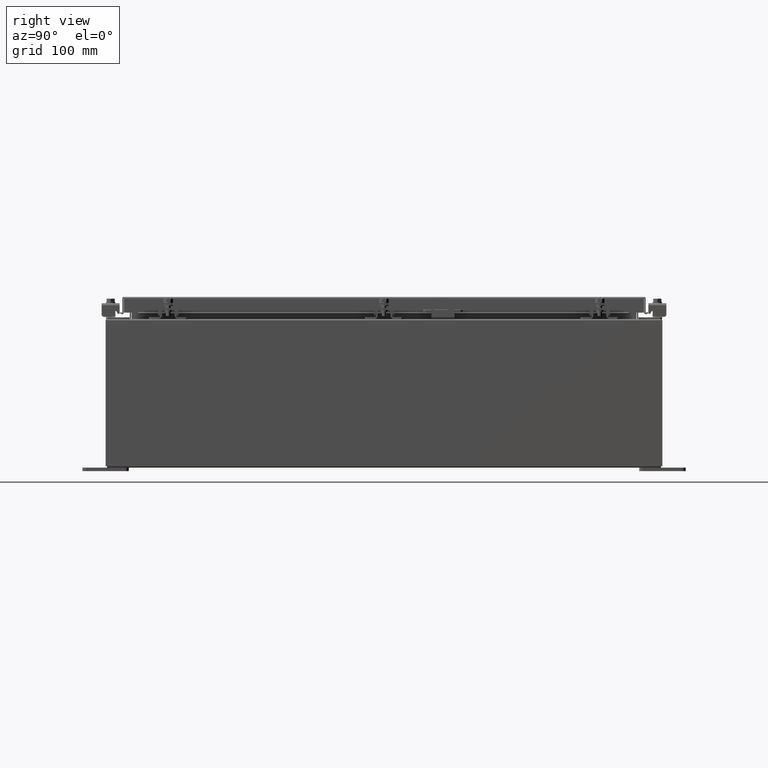
[diagram: clean part render]
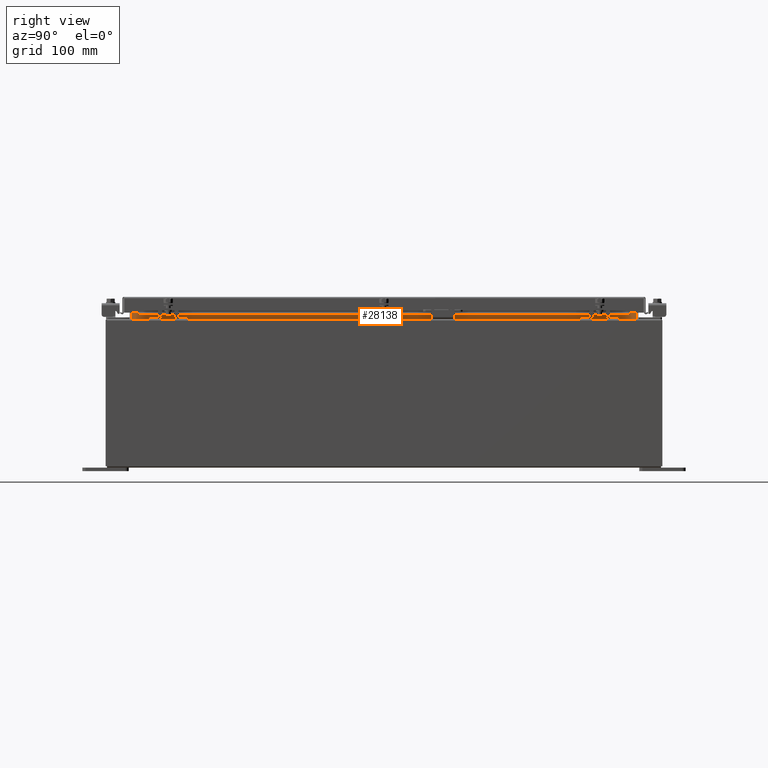
[diagram: same view with one face highlighted and labeled with its STEP entity id]
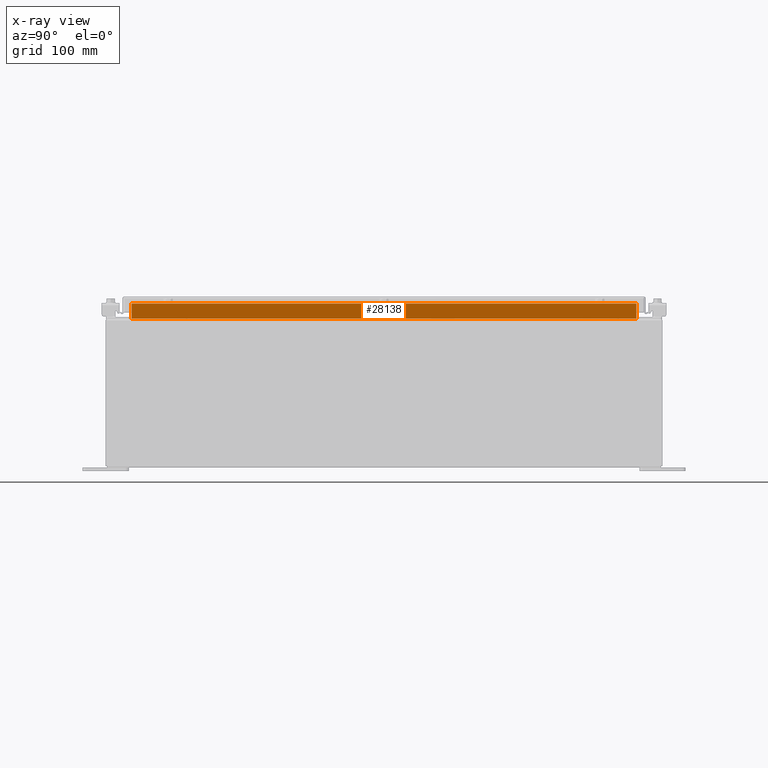
[diagram: x-ray of the same camera — body ghosted, the highlighted face saturated]
A machine part, right view. The second image highlights one B-rep face of the part: STEP entity #28138.
The next image is the same camera in x-ray: the body ghosted, the highlighted face saturated — about 0% of this face is hidden behind the body in this view.
In plain terms, the highlighted planar face has unit normal (1, -0, -0).
Its self-contained STEP definition (entity closure, byte-faithful):
#1247 = EDGE_CURVE ( 'NONE', #17593, #11054, #4870, .T. ) ;
#2328 = CARTESIAN_POINT ( 'NONE',  ( 8.699700000000028400, 13.59375000000000900, 7.938300000000009700 ) ) ;
#3730 = FACE_OUTER_BOUND ( 'NONE', #10174, .T. ) ;
#4870 = LINE ( 'NONE', #36139, #19258 ) ;
#5499 = CARTESIAN_POINT ( 'NONE',  ( 8.699700000000030200, -13.59374999999999800, 8.762900000000009000 ) ) ;
#6831 = CARTESIAN_POINT ( 'NONE',  ( 8.699700000000032000, -13.59374999999999800, 8.762900000000009000 ) ) ;
#7466 = AXIS2_PLACEMENT_3D ( 'NONE', #22059, #21728, #21694 ) ;
#8320 = LINE ( 'NONE', #36901, #15012 ) ;
#10174 = EDGE_LOOP ( 'NONE', ( #32705, #19689, #15746, #34755 ) ) ;
#11054 = VERTEX_POINT ( 'NONE', #6831 ) ;
#11806 = VECTOR ( 'NONE', #35458, 39.37007874015748100 ) ;
#12566 = EDGE_CURVE ( 'NONE', #14529, #17593, #17479, .T. ) ;
#14529 = VERTEX_POINT ( 'NONE', #2328 ) ;
#15012 = VECTOR ( 'NONE', #22332, 39.37007874015748100 ) ;
#15746 = ORIENTED_EDGE ( 'NONE', *, *, #1247, .F. ) ;
#16569 = VECTOR ( 'NONE', #27283, 39.37007874015748100 ) ;
#17479 = LINE ( 'NONE', #27399, #16569 ) ;
#17593 = VERTEX_POINT ( 'NONE', #33159 ) ;
#19258 = VECTOR ( 'NONE', #37233, 39.37007874015748100 ) ;
#19689 = ORIENTED_EDGE ( 'NONE', *, *, #29795, .F. ) ;
#21694 = DIRECTION ( 'NONE',  ( -3.542869979895294000E-015, 0.0000000000000000000, -1.000000000000000000 ) ) ;
#21728 = DIRECTION ( 'NONE',  ( 1.000000000000000000, -1.423975319009148500E-031, -3.542869979895294000E-015 ) ) ;
#22059 = CARTESIAN_POINT ( 'NONE',  ( 8.699700000000000000, -1.238815808278388900E-030, -3.082190596409509000E-014 ) ) ;
#22332 = DIRECTION ( 'NONE',  ( -3.542869979895294000E-015, -0.0000000000000000000, -1.000000000000000000 ) ) ;
#22337 = PLANE ( 'NONE',  #7466 ) ;
#22809 = VERTEX_POINT ( 'NONE', #29195 ) ;
#27283 = DIRECTION ( 'NONE',  ( 4.019270611368110000E-017, -1.000000000000000000, 1.205781183410432900E-016 ) ) ;
#27399 = CARTESIAN_POINT ( 'NONE',  ( 8.699700000000028400, 13.59375000000000700, 7.938300000000008800 ) ) ;
#28138 = ADVANCED_FACE ( 'NONE', ( #3730 ), #22337, .T. ) ;
#29195 = CARTESIAN_POINT ( 'NONE',  ( 8.699700000000030200, 13.59375000000000700, 8.762900000000009000 ) ) ;
#29795 = EDGE_CURVE ( 'NONE', #11054, #22809, #34131, .T. ) ;
#32705 = ORIENTED_EDGE ( 'NONE', *, *, #36109, .F. ) ;
#33159 = CARTESIAN_POINT ( 'NONE',  ( 8.699700000000028400, -13.59375000000000000, 7.938300000000009700 ) ) ;
#34131 = LINE ( 'NONE', #5499, #11806 ) ;
#34755 = ORIENTED_EDGE ( 'NONE', *, *, #12566, .F. ) ;
#35458 = DIRECTION ( 'NONE',  ( 0.0000000000000000000, 1.000000000000000000, 0.0000000000000000000 ) ) ;
#36109 = EDGE_CURVE ( 'NONE', #22809, #14529, #8320, .T. ) ;
#36139 = CARTESIAN_POINT ( 'NONE',  ( 8.699700000000032000, -13.59374999999999800, 8.850600000000008900 ) ) ;
#36901 = CARTESIAN_POINT ( 'NONE',  ( 8.699700000000028400, 13.59375000000000700, 7.925300000000008900 ) ) ;
#37233 = DIRECTION ( 'NONE',  ( 3.542869979895298400E-015, -0.0000000000000000000, 1.000000000000000000 ) ) ;